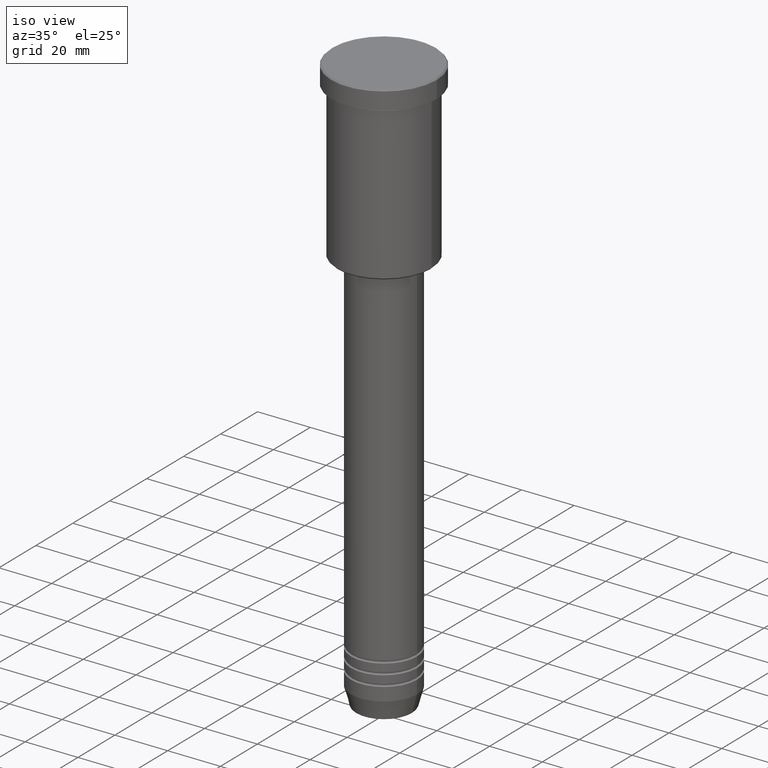
[diagram: clean part render]
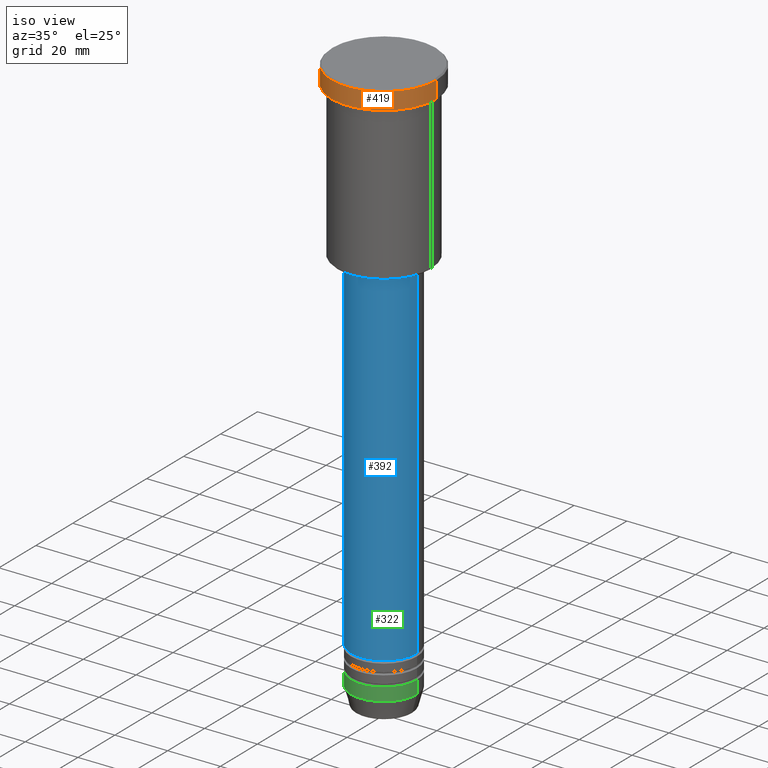
[diagram: same view with three faces highlighted in distinct colors, each labeled with its STEP entity id]
A machine part, iso view with three faces highlighted in distinct colors.
Their STEP definitions:

[orange] entity #419 — the highlighted cylindrical surface (partial cylindrical patch) has radius 20 mm, axis along (-0, -0, 1).
#7 = CARTESIAN_POINT ( 'NONE',  ( -20.00000000000000000, 2.449293598294706513E-15, -6.999999999999995559 ) ) ;
#22 = EDGE_CURVE ( 'NONE', #689, #276, #651, .T. ) ;
#50 = ORIENTED_EDGE ( 'NONE', *, *, #22, .T. ) ;
#100 = DIRECTION ( 'NONE',  ( 1.000000000000000000, 0.000000000000000000, 0.000000000000000000 ) ) ;
#102 = EDGE_LOOP ( 'NONE', ( #732, #791, #50, #709 ) ) ;
#106 = CARTESIAN_POINT ( 'NONE',  ( 20.00000000000000000, 0.000000000000000000, 0.000000000000000000 ) ) ;
#163 = EDGE_CURVE ( 'NONE', #292, #689, #1129, .T. ) ;
#166 = CARTESIAN_POINT ( 'NONE',  ( -20.00000000000000000, 2.449293598294706513E-15, 0.000000000000000000 ) ) ;
#210 = VERTEX_POINT ( 'NONE', #367 ) ;
#258 = DIRECTION ( 'NONE',  ( 1.000000000000000000, 0.000000000000000000, 0.000000000000000000 ) ) ;
#260 = CARTESIAN_POINT ( 'NONE',  ( 0.000000000000000000, 0.000000000000000000, 0.000000000000000000 ) ) ;
#276 = VERTEX_POINT ( 'NONE', #758 ) ;
#291 = VECTOR ( 'NONE', #934, 1000.000000000000000 ) ;
#292 = VERTEX_POINT ( 'NONE', #7 ) ;
#328 = DIRECTION ( 'NONE',  ( -0.000000000000000000, -0.000000000000000000, 1.000000000000000000 ) ) ;
#338 = CARTESIAN_POINT ( 'NONE',  ( 20.00000000000000000, 0.000000000000000000, -6.999999999999995559 ) ) ;
#348 = DIRECTION ( 'NONE',  ( 1.000000000000000000, 0.000000000000000000, 0.000000000000000000 ) ) ;
#367 = CARTESIAN_POINT ( 'NONE',  ( -20.00000000000000000, 2.449293598294706513E-15, -0.4999999999999970024 ) ) ;
#419 = ADVANCED_FACE ( 'NONE', ( #821 ), #456, .T. ) ;
#456 = CYLINDRICAL_SURFACE ( 'NONE', #1109, 20.00000000000000000 ) ;
#497 = EDGE_CURVE ( 'NONE', #292, #210, #995, .T. ) ;
#525 = AXIS2_PLACEMENT_3D ( 'NONE', #1155, #328, #258 ) ;
#597 = AXIS2_PLACEMENT_3D ( 'NONE', #835, #650, #100 ) ;
#627 = DIRECTION ( 'NONE',  ( -0.000000000000000000, -0.000000000000000000, 1.000000000000000000 ) ) ;
#650 = DIRECTION ( 'NONE',  ( 0.000000000000000000, 0.000000000000000000, -1.000000000000000000 ) ) ;
#651 = LINE ( 'NONE', #106, #291 ) ;
#679 = CIRCLE ( 'NONE', #597, 20.00000000000000000 ) ;
#689 = VERTEX_POINT ( 'NONE', #338 ) ;
#695 = DIRECTION ( 'NONE',  ( -0.000000000000000000, -0.000000000000000000, 1.000000000000000000 ) ) ;
#709 = ORIENTED_EDGE ( 'NONE', *, *, #818, .T. ) ;
#729 = VECTOR ( 'NONE', #695, 1000.000000000000000 ) ;
#732 = ORIENTED_EDGE ( 'NONE', *, *, #497, .F. ) ;
#758 = CARTESIAN_POINT ( 'NONE',  ( 20.00000000000000000, 0.000000000000000000, -0.4999999999999970024 ) ) ;
#791 = ORIENTED_EDGE ( 'NONE', *, *, #163, .T. ) ;
#818 = EDGE_CURVE ( 'NONE', #276, #210, #679, .T. ) ;
#821 = FACE_OUTER_BOUND ( 'NONE', #102, .T. ) ;
#835 = CARTESIAN_POINT ( 'NONE',  ( 0.000000000000000000, 0.000000000000000000, -0.4999999999999970024 ) ) ;
#934 = DIRECTION ( 'NONE',  ( -0.000000000000000000, -0.000000000000000000, 1.000000000000000000 ) ) ;
#995 = LINE ( 'NONE', #166, #729 ) ;
#1109 = AXIS2_PLACEMENT_3D ( 'NONE', #260, #627, #348 ) ;
#1129 = CIRCLE ( 'NONE', #525, 20.00000000000000000 ) ;
#1155 = CARTESIAN_POINT ( 'NONE',  ( 0.000000000000000000, 0.000000000000000000, -6.999999999999995559 ) ) ;

[blue] entity #392 — the highlighted cylindrical surface (partial cylindrical patch) has radius 12.5 mm, axis along (-0, -0, 1).
#44 = ORIENTED_EDGE ( 'NONE', *, *, #717, .T. ) ;
#66 = DIRECTION ( 'NONE',  ( -0.000000000000000000, -0.000000000000000000, 1.000000000000000000 ) ) ;
#71 = CIRCLE ( 'NONE', #479, 12.50000000000000000 ) ;
#85 = EDGE_CURVE ( 'NONE', #883, #668, #901, .T. ) ;
#142 = VERTEX_POINT ( 'NONE', #524 ) ;
#152 = CARTESIAN_POINT ( 'NONE',  ( 0.000000000000000000, 0.000000000000000000, -67.00000000000002842 ) ) ;
#156 = DIRECTION ( 'NONE',  ( -0.000000000000000000, -0.000000000000000000, 1.000000000000000000 ) ) ;
#216 = DIRECTION ( 'NONE',  ( -0.000000000000000000, -0.000000000000000000, 1.000000000000000000 ) ) ;
#256 = DIRECTION ( 'NONE',  ( 1.000000000000000000, 0.000000000000000000, 0.000000000000000000 ) ) ;
#289 = VECTOR ( 'NONE', #986, 1000.000000000000000 ) ;
#365 = CARTESIAN_POINT ( 'NONE',  ( 12.50000000000000000, 0.000000000000000000, -198.9999999999999716 ) ) ;
#392 = ADVANCED_FACE ( 'NONE', ( #673 ), #495, .T. ) ;
#403 = ORIENTED_EDGE ( 'NONE', *, *, #549, .F. ) ;
#414 = ORIENTED_EDGE ( 'NONE', *, *, #1051, .T. ) ;
#432 = DIRECTION ( 'NONE',  ( 1.000000000000000000, 0.000000000000000000, 0.000000000000000000 ) ) ;
#479 = AXIS2_PLACEMENT_3D ( 'NONE', #1081, #156, #256 ) ;
#490 = DIRECTION ( 'NONE',  ( -0.000000000000000000, -0.000000000000000000, 1.000000000000000000 ) ) ;
#495 = CYLINDRICAL_SURFACE ( 'NONE', #1034, 12.50000000000000000 ) ;
#524 = CARTESIAN_POINT ( 'NONE',  ( -12.50000000000000000, 1.530808498934191521E-15, -198.9999999999999716 ) ) ;
#537 = EDGE_LOOP ( 'NONE', ( #403, #414, #44, #1158 ) ) ;
#549 = EDGE_CURVE ( 'NONE', #142, #883, #983, .T. ) ;
#631 = CARTESIAN_POINT ( 'NONE',  ( 12.50000000000000000, 0.000000000000000000, -67.00000000000002842 ) ) ;
#649 = VECTOR ( 'NONE', #490, 1000.000000000000000 ) ;
#668 = VERTEX_POINT ( 'NONE', #631 ) ;
#673 = FACE_OUTER_BOUND ( 'NONE', #537, .T. ) ;
#710 = CARTESIAN_POINT ( 'NONE',  ( -12.50000000000000000, 1.530808498934191521E-15, 0.000000000000000000 ) ) ;
#717 = EDGE_CURVE ( 'NONE', #773, #668, #815, .T. ) ;
#724 = CARTESIAN_POINT ( 'NONE',  ( 12.50000000000000000, 0.000000000000000000, 0.000000000000000000 ) ) ;
#773 = VERTEX_POINT ( 'NONE', #365 ) ;
#798 = DIRECTION ( 'NONE',  ( 1.000000000000000000, 0.000000000000000000, 0.000000000000000000 ) ) ;
#815 = LINE ( 'NONE', #724, #289 ) ;
#883 = VERTEX_POINT ( 'NONE', #917 ) ;
#897 = CARTESIAN_POINT ( 'NONE',  ( 0.000000000000000000, 0.000000000000000000, 0.000000000000000000 ) ) ;
#901 = CIRCLE ( 'NONE', #940, 12.50000000000000000 ) ;
#917 = CARTESIAN_POINT ( 'NONE',  ( -12.50000000000000000, 1.530808498934191521E-15, -67.00000000000002842 ) ) ;
#940 = AXIS2_PLACEMENT_3D ( 'NONE', #152, #66, #798 ) ;
#983 = LINE ( 'NONE', #710, #649 ) ;
#986 = DIRECTION ( 'NONE',  ( -0.000000000000000000, -0.000000000000000000, 1.000000000000000000 ) ) ;
#1034 = AXIS2_PLACEMENT_3D ( 'NONE', #897, #216, #432 ) ;
#1051 = EDGE_CURVE ( 'NONE', #142, #773, #71, .T. ) ;
#1081 = CARTESIAN_POINT ( 'NONE',  ( 0.000000000000000000, 0.000000000000000000, -198.9999999999999716 ) ) ;
#1158 = ORIENTED_EDGE ( 'NONE', *, *, #85, .F. ) ;

[green] entity #322 — the highlighted cylindrical surface (partial cylindrical patch) has radius 12.5 mm, axis along (-0, -0, 1).
#17 = CARTESIAN_POINT ( 'NONE',  ( 0.000000000000000000, 0.000000000000000000, 0.000000000000000000 ) ) ;
#24 = LINE ( 'NONE', #1025, #970 ) ;
#29 = DIRECTION ( 'NONE',  ( -0.000000000000000000, -0.000000000000000000, 1.000000000000000000 ) ) ;
#33 = LINE ( 'NONE', #1053, #898 ) ;
#40 = EDGE_LOOP ( 'NONE', ( #228, #748, #138, #86 ) ) ;
#43 = DIRECTION ( 'NONE',  ( 1.000000000000000000, 0.000000000000000000, 0.000000000000000000 ) ) ;
#86 = ORIENTED_EDGE ( 'NONE', *, *, #359, .F. ) ;
#138 = ORIENTED_EDGE ( 'NONE', *, *, #890, .T. ) ;
#150 = CARTESIAN_POINT ( 'NONE',  ( 0.000000000000000000, 0.000000000000000000, -213.0000000000000000 ) ) ;
#219 = CIRCLE ( 'NONE', #701, 12.50000000000000000 ) ;
#228 = ORIENTED_EDGE ( 'NONE', *, *, #340, .F. ) ;
#301 = DIRECTION ( 'NONE',  ( -0.000000000000000000, -0.000000000000000000, 1.000000000000000000 ) ) ;
#322 = ADVANCED_FACE ( 'NONE', ( #466 ), #923, .T. ) ;
#334 = CARTESIAN_POINT ( 'NONE',  ( -12.50000000000000000, 1.530808498934191521E-15, -213.0000000000000000 ) ) ;
#340 = EDGE_CURVE ( 'NONE', #499, #385, #24, .T. ) ;
#359 = EDGE_CURVE ( 'NONE', #385, #812, #484, .T. ) ;
#385 = VERTEX_POINT ( 'NONE', #744 ) ;
#466 = FACE_OUTER_BOUND ( 'NONE', #40, .T. ) ;
#484 = CIRCLE ( 'NONE', #1160, 12.50000000000000000 ) ;
#499 = VERTEX_POINT ( 'NONE', #334 ) ;
#504 = AXIS2_PLACEMENT_3D ( 'NONE', #17, #29, #1032 ) ;
#509 = DIRECTION ( 'NONE',  ( -0.000000000000000000, -0.000000000000000000, 1.000000000000000000 ) ) ;
#560 = DIRECTION ( 'NONE',  ( -0.000000000000000000, -0.000000000000000000, 1.000000000000000000 ) ) ;
#660 = CARTESIAN_POINT ( 'NONE',  ( 0.000000000000000000, 0.000000000000000000, -208.0000000000000000 ) ) ;
#701 = AXIS2_PLACEMENT_3D ( 'NONE', #150, #509, #891 ) ;
#744 = CARTESIAN_POINT ( 'NONE',  ( -12.50000000000000000, 1.530808498934191521E-15, -208.0000000000000000 ) ) ;
#748 = ORIENTED_EDGE ( 'NONE', *, *, #756, .T. ) ;
#756 = EDGE_CURVE ( 'NONE', #499, #1064, #219, .T. ) ;
#812 = VERTEX_POINT ( 'NONE', #1101 ) ;
#890 = EDGE_CURVE ( 'NONE', #1064, #812, #33, .T. ) ;
#891 = DIRECTION ( 'NONE',  ( 1.000000000000000000, 0.000000000000000000, 0.000000000000000000 ) ) ;
#898 = VECTOR ( 'NONE', #301, 1000.000000000000000 ) ;
#911 = CARTESIAN_POINT ( 'NONE',  ( 12.50000000000000000, 0.000000000000000000, -213.0000000000000000 ) ) ;
#923 = CYLINDRICAL_SURFACE ( 'NONE', #504, 12.50000000000000000 ) ;
#970 = VECTOR ( 'NONE', #560, 1000.000000000000000 ) ;
#1025 = CARTESIAN_POINT ( 'NONE',  ( -12.50000000000000000, 1.530808498934191521E-15, 0.000000000000000000 ) ) ;
#1032 = DIRECTION ( 'NONE',  ( 1.000000000000000000, 0.000000000000000000, 0.000000000000000000 ) ) ;
#1053 = CARTESIAN_POINT ( 'NONE',  ( 12.50000000000000000, 0.000000000000000000, 0.000000000000000000 ) ) ;
#1064 = VERTEX_POINT ( 'NONE', #911 ) ;
#1101 = CARTESIAN_POINT ( 'NONE',  ( 12.50000000000000000, 0.000000000000000000, -208.0000000000000000 ) ) ;
#1124 = DIRECTION ( 'NONE',  ( -0.000000000000000000, -0.000000000000000000, 1.000000000000000000 ) ) ;
#1160 = AXIS2_PLACEMENT_3D ( 'NONE', #660, #1124, #43 ) ;